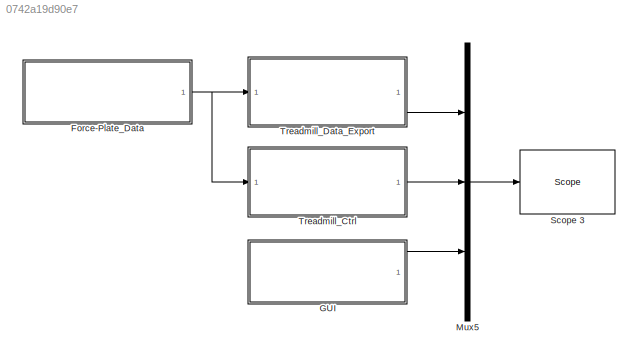
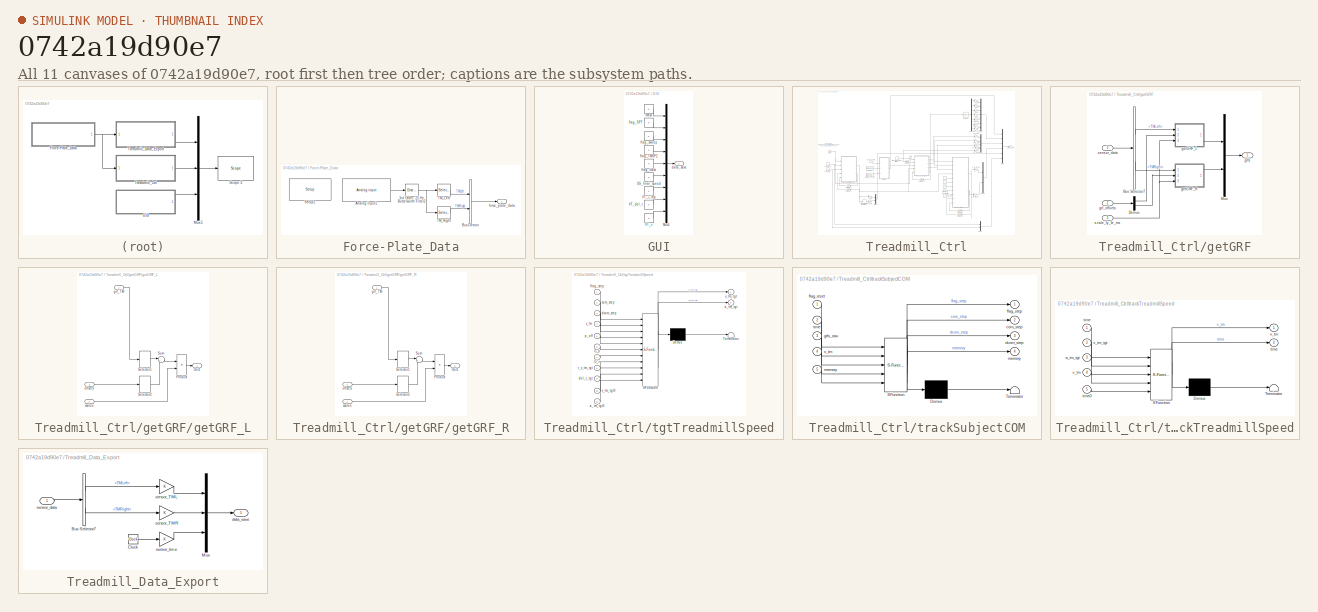
[diagram: thumbnail index - all 11 canvases of the model, root first then tree order]
MODEL slx_0742a19d90e7
KIND model
CONFIG AbsTol = auto
CONFIG EnableMultiTasking = on
CONFIG FixedStep = 0.001
CONFIG MaxStep = auto
CONFIG MinStep = auto
CONFIG RelTol = 1e-3
CONFIG SampleTimeConstraint = Unconstrained
CONFIG Solver = FixedStepDiscrete
CONFIG SolverName = FixedStepDiscrete
CONFIG StartTime = 0.0
CONFIG StopTime = inf
BLOCK [SubSystem] Force-Plate_Data
  Ports = [0, 1]
  RequestExecContextInheritance = off
  Variant = off
BLOCK [DiscreteFilter] Force-Plate_Data/3rd Order, 25 Hz Butterworth Filter2
  Denominator = [1	-2.68615739654814	2.41965511096647	-0.730165345305723]
  InputPortMap = u0
  Numerator = [0.000416546139075769	0.00124963841722731	0.00124963841722731	0.000416546139075769]
  Ports = [1, 1]
BLOCK [Reference] Force-Plate_Data/Analog input1  REF=speedgoatlib_IO106/Analog input
  Ports = [0, 1]
  SourceBlock = speedgoatlib_IO106/Analog input
  SourceProductName = Simulink Real-Time: Speedgoat I/O Driver Library
  SourceType = ad_IO106
BLOCK [BusCreator] Force-Plate_Data/Bus Creator
  DisplayOption = bar
  InheritFromInputs = on
  Inputs = 2
  Ports = [2, 1]
BLOCK [Reference] Force-Plate_Data/Setup2  REF=speedgoatlib_IO106/Setup
  Ports = []
  SourceBlock = speedgoatlib_IO106/Setup
  SourceProductName = Simulink Real-Time: Speedgoat I/O Driver Library
  SourceType = setup_IO106
BLOCK [Selector] Force-Plate_Data/TM_Left
  IndexOptions = Index vector (dialog)
  Indices = 1:6
  InputPortWidth = 12
  OutputSizes = 1
  Ports = [1, 1]
BLOCK [Selector] Force-Plate_Data/TM_Right
  IndexOptions = Index vector (dialog)
  Indices = 7:12
  InputPortWidth = 12
  OutputSizes = 1
  Ports = [1, 1]
BLOCK [Outport] Force-Plate_Data/force_plate_data
  IconDisplay = Port number
BLOCK [SubSystem] GUI
  Ports = [0, 1]
  RequestExecContextInheritance = off
  Variant = off
BLOCK [Mux] GUI/Mux1
  DisplayOption = bar
  Inputs = 9
  Ports = [9, 1]
BLOCK [Constant] GUI/SS_final_speed
  Value = 0
BLOCK [Constant] GUI/VT_del_t
  Value = 0
BLOCK [Constant] GUI/VT_i_lap
  Value = 0
BLOCK [Constant] GUI/VT_v
  Value = 0
BLOCK [Outport] GUI/data_save
  IconDisplay = Port number
BLOCK [Constant] GUI/flag_SPT
  Value = 0
BLOCK [Constant] GUI/flag_TMSP2
  Value = 0
BLOCK [Constant] GUI/flag_sweep
  Value = 0
BLOCK [Constant] GUI/flag_track
  Value = 0
BLOCK [Constant] GUI/mass
  Value = 0
BLOCK [Mux] Mux5
  DisplayOption = bar
  Inputs = 3
  Ports = [3, 1]
BLOCK [Reference] Scope 3  REF=slrtlib/Displays and
Logging/Scope 
  Ports = [1]
  SourceBlock = slrtlib/Displays and\nLogging/Scope
  SourceProductBaseCode = XP
  SourceProductName = Simulink Real-Time
  SourceType = xpcscopeblock
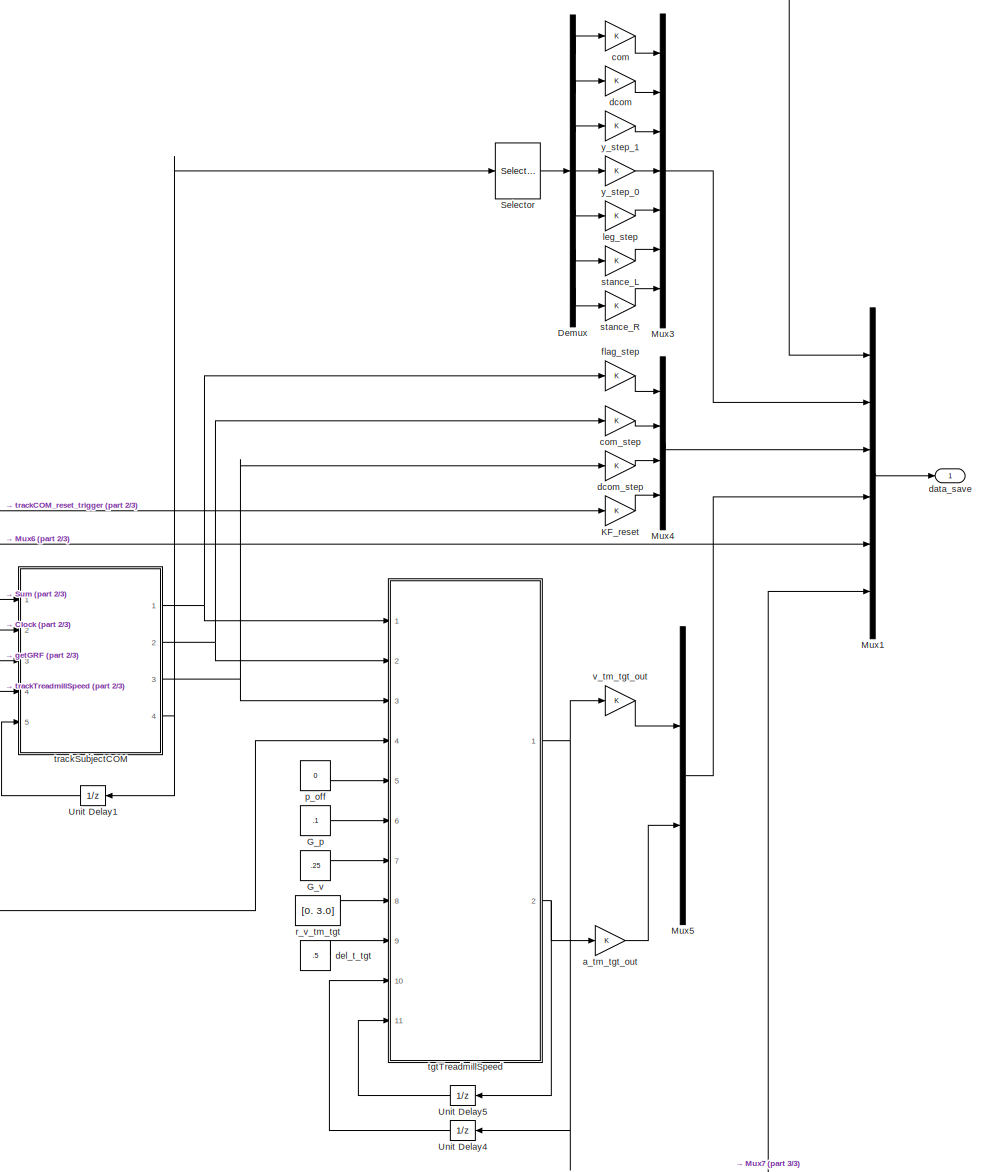
[diagram: Treadmill_Ctrl - part 1/3, right side, full height]
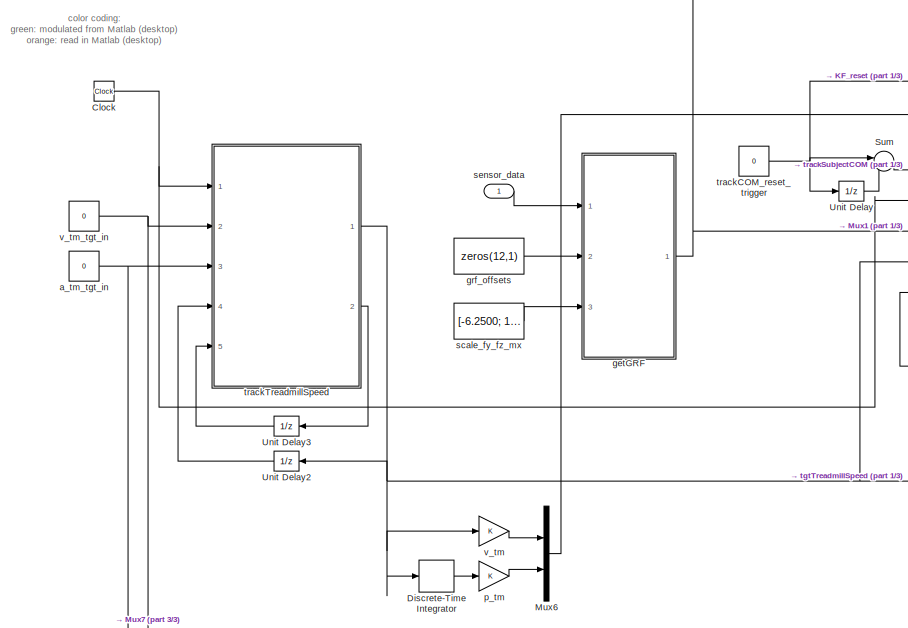
[diagram: Treadmill_Ctrl - part 2/3, middle left region]
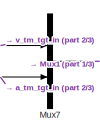
[diagram: Treadmill_Ctrl - part 3/3, bottom right region]
BLOCK [SubSystem] Treadmill_Ctrl
  Ports = [1, 1]
  RequestExecContextInheritance = off
  Variant = off
BLOCK [Clock] Treadmill_Ctrl/Clock
BLOCK [Demux] Treadmill_Ctrl/Demux
  DisplayOption = bar
  Outputs = 7
  Ports = [1, 7]
BLOCK [DiscreteIntegrator] Treadmill_Ctrl/Discrete-Time Integrator
  ICPrevOutput = DiscIntNeverNeededParam
  ICPrevScaledInput = DiscIntNeverNeededParam
  InitialConditionSetting = State (most efficient)
  Ports = [1, 1]
  SampleTime = -1
BLOCK [Constant] Treadmill_Ctrl/G_p
  Value = .1
BLOCK [Constant] Treadmill_Ctrl/G_v
  Value = .25
BLOCK [Gain] Treadmill_Ctrl/KF_reset
  OutDataTypeStr = Inherit: Inherit via internal rule
  ParamDataTypeStr = Inherit: Inherit via internal rule
  SaturateOnIntegerOverflow = off
BLOCK [Mux] Treadmill_Ctrl/Mux1
  DisplayOption = bar
  Inputs = 6
  Ports = [6, 1]
BLOCK [Mux] Treadmill_Ctrl/Mux3
  DisplayOption = bar
  Inputs = 7
  Ports = [7, 1]
BLOCK [Mux] Treadmill_Ctrl/Mux4
  DisplayOption = bar
  Ports = [4, 1]
BLOCK [Mux] Treadmill_Ctrl/Mux5
  DisplayOption = bar
  Inputs = 2
  Ports = [2, 1]
BLOCK [Mux] Treadmill_Ctrl/Mux6
  DisplayOption = bar
  Inputs = 2
  Ports = [2, 1]
BLOCK [Mux] Treadmill_Ctrl/Mux7
  DisplayOption = bar
  Inputs = 2
  Ports = [2, 1]
BLOCK [Selector] Treadmill_Ctrl/Selector
  IndexOptions = Index vector (dialog)
  Indices = [2 3 13 14 11 8 9]
  InputPortWidth = 82
  OutputSizes = 1
  Ports = [1, 1]
BLOCK [Sum] Treadmill_Ctrl/Sum
  IconShape = round
  InputSameDT = off
  Inputs = |+-
  OutDataTypeStr = Inherit: Inherit via internal rule
  Ports = [2, 1]
  SaturateOnIntegerOverflow = off
BLOCK [UnitDelay] Treadmill_Ctrl/Unit Delay
  InputProcessing = Elements as channels (sample based)
  SampleTime = -1
BLOCK [UnitDelay] Treadmill_Ctrl/Unit Delay1
  InitialCondition = [0 0 0 .00383 .00162 .00162 .00166 0 0 .7 0 1 .35 -.35 0 -.5 0 0 0 0 0 0 zeros(1,60)]
  InputProcessing = Elements as channels (sample based)
  SampleTime = -1
BLOCK [UnitDelay] Treadmill_Ctrl/Unit Delay2
  InputProcessing = Elements as channels (sample based)
  SampleTime = -1
BLOCK [UnitDelay] Treadmill_Ctrl/Unit Delay3
  InputProcessing = Elements as channels (sample based)
  SampleTime = -1
BLOCK [UnitDelay] Treadmill_Ctrl/Unit Delay4
  InputProcessing = Elements as channels (sample based)
  SampleTime = -1
BLOCK [UnitDelay] Treadmill_Ctrl/Unit Delay5
  InputProcessing = Elements as channels (sample based)
  SampleTime = -1
BLOCK [Constant] Treadmill_Ctrl/a_tm_tgt_in
  Value = 0
BLOCK [Gain] Treadmill_Ctrl/a_tm_tgt_out
  OutDataTypeStr = Inherit: Inherit via internal rule
  ParamDataTypeStr = Inherit: Inherit via internal rule
  SaturateOnIntegerOverflow = off
BLOCK [Gain] Treadmill_Ctrl/com
  OutDataTypeStr = Inherit: Inherit via internal rule
  ParamDataTypeStr = Inherit: Inherit via internal rule
  SaturateOnIntegerOverflow = off
BLOCK [Gain] Treadmill_Ctrl/com_step
  OutDataTypeStr = Inherit: Inherit via internal rule
  ParamDataTypeStr = Inherit: Inherit via internal rule
  SaturateOnIntegerOverflow = off
BLOCK [Outport] Treadmill_Ctrl/data_save
  IconDisplay = Port number
BLOCK [Gain] Treadmill_Ctrl/dcom
  OutDataTypeStr = Inherit: Inherit via internal rule
  ParamDataTypeStr = Inherit: Inherit via internal rule
  SaturateOnIntegerOverflow = off
BLOCK [Gain] Treadmill_Ctrl/dcom_step
  OutDataTypeStr = Inherit: Inherit via internal rule
  ParamDataTypeStr = Inherit: Inherit via internal rule
  SaturateOnIntegerOverflow = off
BLOCK [Constant] Treadmill_Ctrl/del_t_tgt
  Value = .5
BLOCK [Gain] Treadmill_Ctrl/flag_step
  OutDataTypeStr = Inherit: Inherit via internal rule
  ParamDataTypeStr = Inherit: Inherit via internal rule
  SaturateOnIntegerOverflow = off
BLOCK [SubSystem] Treadmill_Ctrl/getGRF
  Ports = [3, 1]
  RequestExecContextInheritance = off
  Variant = off
BLOCK [BusSelector] Treadmill_Ctrl/getGRF/Bus Selector7
  OutputAsBus = off
  OutputSignals = TMLeft,TMRight
  Ports = [1, 2]
BLOCK [Demux] Treadmill_Ctrl/getGRF/Demux
  DisplayOption = bar
  Outputs = 2
  Ports = [1, 2]
BLOCK [Mux] Treadmill_Ctrl/getGRF/Mux
  DisplayOption = bar
  Inputs = 2
  Ports = [2, 1]
BLOCK [SubSystem] Treadmill_Ctrl/getGRF/getGRF_L
  Ports = [3, 1]
  RequestExecContextInheritance = off
  Variant = off
BLOCK [Outport] Treadmill_Ctrl/getGRF/getGRF_L/Out1
  IconDisplay = Port number
BLOCK [Product] Treadmill_Ctrl/getGRF/getGRF_L/Product
  InputSameDT = off
  OutDataTypeStr = Inherit: Inherit via internal rule
  Ports = [2, 1]
  RndMeth = Floor
  SaturateOnIntegerOverflow = off
BLOCK [Selector] Treadmill_Ctrl/getGRF/getGRF_L/Selector1
  IndexOptions = Index vector (dialog)
  Indices = [2 3 4]
  InputPortWidth = 6
  OutputSizes = 1
  Ports = [1, 1]
BLOCK [Selector] Treadmill_Ctrl/getGRF/getGRF_L/Selector2
  IndexOptions = Index vector (dialog)
  Indices = [2 3 4]
  InputPortWidth = 6
  OutputSizes = 1
  Ports = [1, 1]
BLOCK [Sum] Treadmill_Ctrl/getGRF/getGRF_L/Sum
  IconShape = round
  InputSameDT = off
  Inputs = |+-
  OutDataTypeStr = Inherit: Inherit via internal rule
  Ports = [2, 1]
  SaturateOnIntegerOverflow = off
BLOCK [Inport] Treadmill_Ctrl/getGRF/getGRF_L/grf_TM
  IconDisplay = Port number
BLOCK [Inport] Treadmill_Ctrl/getGRF/getGRF_L/offsets
  IconDisplay = Port number
  Port = 2
BLOCK [Inport] Treadmill_Ctrl/getGRF/getGRF_L/scales
  IconDisplay = Port number
  Port = 3
BLOCK [SubSystem] Treadmill_Ctrl/getGRF/getGRF_R
  Ports = [3, 1]
  RequestExecContextInheritance = off
  Variant = off
BLOCK [Outport] Treadmill_Ctrl/getGRF/getGRF_R/Out1
  IconDisplay = Port number
BLOCK [Product] Treadmill_Ctrl/getGRF/getGRF_R/Product
  InputSameDT = off
  OutDataTypeStr = Inherit: Inherit via internal rule
  Ports = [2, 1]
  RndMeth = Floor
  SaturateOnIntegerOverflow = off
BLOCK [Selector] Treadmill_Ctrl/getGRF/getGRF_R/Selector1
  IndexOptions = Index vector (dialog)
  Indices = [2 3 4]
  InputPortWidth = 6
  OutputSizes = 1
  Ports = [1, 1]
BLOCK [Selector] Treadmill_Ctrl/getGRF/getGRF_R/Selector2
  IndexOptions = Index vector (dialog)
  Indices = [2 3 4]
  InputPortWidth = 6
  OutputSizes = 1
  Ports = [1, 1]
BLOCK [Sum] Treadmill_Ctrl/getGRF/getGRF_R/Sum
  IconShape = round
  InputSameDT = off
  Inputs = |+-
  OutDataTypeStr = Inherit: Inherit via internal rule
  Ports = [2, 1]
  SaturateOnIntegerOverflow = off
BLOCK [Inport] Treadmill_Ctrl/getGRF/getGRF_R/grf_TM
  IconDisplay = Port number
BLOCK [Inport] Treadmill_Ctrl/getGRF/getGRF_R/offsets
  IconDisplay = Port number
  Port = 2
BLOCK [Inport] Treadmill_Ctrl/getGRF/getGRF_R/scales
  IconDisplay = Port number
  Port = 3
BLOCK [Inport] Treadmill_Ctrl/getGRF/grf_offsets
  IconDisplay = Port number
  Port = 2
BLOCK [Outport] Treadmill_Ctrl/getGRF/grfs
  IconDisplay = Port number
BLOCK [Inport] Treadmill_Ctrl/getGRF/scale_fy_fz_mx
  IconDisplay = Port number
  Port = 3
BLOCK [Inport] Treadmill_Ctrl/getGRF/sensor_data
  IconDisplay = Port number
BLOCK [Constant] Treadmill_Ctrl/grf_offsets
  Value = zeros(12,1)
BLOCK [Gain] Treadmill_Ctrl/leg_step
  OutDataTypeStr = Inherit: Inherit via internal rule
  ParamDataTypeStr = Inherit: Inherit via internal rule
  SaturateOnIntegerOverflow = off
BLOCK [Constant] Treadmill_Ctrl/p_off
  Value = 0
BLOCK [Gain] Treadmill_Ctrl/p_tm
  OutDataTypeStr = Inherit: Inherit via internal rule
  ParamDataTypeStr = Inherit: Inherit via internal rule
  SaturateOnIntegerOverflow = off
BLOCK [Constant] Treadmill_Ctrl/r_v_tm_tgt
  Value = [0. 3.0]
BLOCK [Constant] Treadmill_Ctrl/scale_fy_fz_mx
  Value = [-6.2500; 12.5000; -10.0000]
BLOCK [Inport] Treadmill_Ctrl/sensor_data
  IconDisplay = Port number
BLOCK [Gain] Treadmill_Ctrl/stance_L
  OutDataTypeStr = Inherit: Inherit via internal rule
  ParamDataTypeStr = Inherit: Inherit via internal rule
  SaturateOnIntegerOverflow = off
BLOCK [Gain] Treadmill_Ctrl/stance_R
  OutDataTypeStr = Inherit: Inherit via internal rule
  ParamDataTypeStr = Inherit: Inherit via internal rule
  SaturateOnIntegerOverflow = off
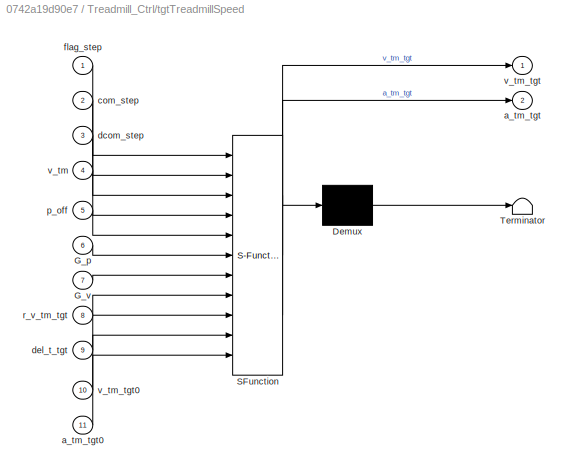
BLOCK [SubSystem] Treadmill_Ctrl/tgtTreadmillSpeed
  ErrorFcn = Stateflow.Translate.translate
  PermitHierarchicalResolution = ExplicitOnly
  Ports = [11, 2]
  RequestExecContextInheritance = off
  SFBlockType = MATLAB Function
  TreatAsAtomicUnit = on
  Variant = off
BLOCK [Demux] Treadmill_Ctrl/tgtTreadmillSpeed/ Demux 
  Outputs = 1
  Ports = [1, 1]
BLOCK [S-Function] Treadmill_Ctrl/tgtTreadmillSpeed/ SFunction 
  EnableBusSupport = on
  FunctionName = sf_sfun
  PortCounts = [11 3]
  Ports = [11, 3]
  SFcnIsStateOwnerBlock = off
  SFunctionDeploymentMode = off
  Tag = Stateflow S-Function Treadmill_SPT 8
BLOCK [Terminator] Treadmill_Ctrl/tgtTreadmillSpeed/ Terminator 
BLOCK [Inport] Treadmill_Ctrl/tgtTreadmillSpeed/G_p
  IconDisplay = Port number
  Port = 6
BLOCK [Inport] Treadmill_Ctrl/tgtTreadmillSpeed/G_v
  IconDisplay = Port number
  Port = 7
BLOCK [Outport] Treadmill_Ctrl/tgtTreadmillSpeed/a_tm_tgt
  IconDisplay = Port number
  Port = 2
BLOCK [Inport] Treadmill_Ctrl/tgtTreadmillSpeed/a_tm_tgt0
  IconDisplay = Port number
  Port = 11
BLOCK [Inport] Treadmill_Ctrl/tgtTreadmillSpeed/com_step
  IconDisplay = Port number
  Port = 2
BLOCK [Inport] Treadmill_Ctrl/tgtTreadmillSpeed/dcom_step
  IconDisplay = Port number
  Port = 3
BLOCK [Inport] Treadmill_Ctrl/tgtTreadmillSpeed/del_t_tgt
  IconDisplay = Port number
  Port = 9
BLOCK [Inport] Treadmill_Ctrl/tgtTreadmillSpeed/flag_step
  IconDisplay = Port number
BLOCK [Inport] Treadmill_Ctrl/tgtTreadmillSpeed/p_off
  IconDisplay = Port number
  Port = 5
BLOCK [Inport] Treadmill_Ctrl/tgtTreadmillSpeed/r_v_tm_tgt
  IconDisplay = Port number
  Port = 8
BLOCK [Inport] Treadmill_Ctrl/tgtTreadmillSpeed/v_tm
  IconDisplay = Port number
  Port = 4
BLOCK [Outport] Treadmill_Ctrl/tgtTreadmillSpeed/v_tm_tgt
  IconDisplay = Port number
BLOCK [Inport] Treadmill_Ctrl/tgtTreadmillSpeed/v_tm_tgt0
  IconDisplay = Port number
  Port = 10
BLOCK [Constant] Treadmill_Ctrl/trackCOM_reset_trigger
  Value = 0
BLOCK [SubSystem] Treadmill_Ctrl/trackSubjectCOM
  ErrorFcn = Stateflow.Translate.translate
  PermitHierarchicalResolution = ExplicitOnly
  Ports = [5, 4]
  RequestExecContextInheritance = off
  SFBlockType = MATLAB Function
  TreatAsAtomicUnit = on
  Variant = off
BLOCK [Demux] Treadmill_Ctrl/trackSubjectCOM/ Demux 
  Outputs = 1
  Ports = [1, 1]
BLOCK [S-Function] Treadmill_Ctrl/trackSubjectCOM/ SFunction 
  EnableBusSupport = on
  FunctionName = sf_sfun
  PortCounts = [5 5]
  Ports = [5, 5]
  SFcnIsStateOwnerBlock = off
  SFunctionDeploymentMode = off
  Tag = Stateflow S-Function Treadmill_SPT 13
BLOCK [Terminator] Treadmill_Ctrl/trackSubjectCOM/ Terminator 
BLOCK [Outport] Treadmill_Ctrl/trackSubjectCOM/com_step
  IconDisplay = Port number
  Port = 2
BLOCK [Outport] Treadmill_Ctrl/trackSubjectCOM/dcom_step
  IconDisplay = Port number
  Port = 3
BLOCK [Inport] Treadmill_Ctrl/trackSubjectCOM/flag_reset
  IconDisplay = Port number
BLOCK [Outport] Treadmill_Ctrl/trackSubjectCOM/flag_step
  IconDisplay = Port number
BLOCK [Inport] Treadmill_Ctrl/trackSubjectCOM/grfs_raw
  IconDisplay = Port number
  Port = 3
BLOCK [Outport] Treadmill_Ctrl/trackSubjectCOM/memory
  IconDisplay = Port number
  Port = 4
BLOCK [Inport] Treadmill_Ctrl/trackSubjectCOM/memory 
  IconDisplay = Port number
  Port = 5
BLOCK [Inport] Treadmill_Ctrl/trackSubjectCOM/time
  IconDisplay = Port number
  Port = 2
BLOCK [Inport] Treadmill_Ctrl/trackSubjectCOM/v_tm
  IconDisplay = Port number
  Port = 4
BLOCK [SubSystem] Treadmill_Ctrl/trackTreadmillSpeed
  ErrorFcn = Stateflow.Translate.translate
  PermitHierarchicalResolution = ExplicitOnly
  Ports = [5, 2]
  RequestExecContextInheritance = off
  SFBlockType = MATLAB Function
  TreatAsAtomicUnit = on
  Variant = off
BLOCK [Demux] Treadmill_Ctrl/trackTreadmillSpeed/ Demux 
  Outputs = 1
  Ports = [1, 1]
BLOCK [S-Function] Treadmill_Ctrl/trackTreadmillSpeed/ SFunction 
  EnableBusSupport = on
  FunctionName = sf_sfun
  PortCounts = [5 3]
  Ports = [5, 3]
  SFcnIsStateOwnerBlock = off
  SFunctionDeploymentMode = off
  Tag = Stateflow S-Function Treadmill_SPT 2
BLOCK [Terminator] Treadmill_Ctrl/trackTreadmillSpeed/ Terminator 
BLOCK [Inport] Treadmill_Ctrl/trackTreadmillSpeed/a_tm_tgt
  IconDisplay = Port number
  Port = 3
BLOCK [Outport] Treadmill_Ctrl/trackTreadmillSpeed/time
  IconDisplay = Port number
  Port = 2
BLOCK [Inport] Treadmill_Ctrl/trackTreadmillSpeed/time 
  IconDisplay = Port number
BLOCK [Inport] Treadmill_Ctrl/trackTreadmillSpeed/time0
  IconDisplay = Port number
  Port = 5
BLOCK [Outport] Treadmill_Ctrl/trackTreadmillSpeed/v_tm
  IconDisplay = Port number
BLOCK [Inport] Treadmill_Ctrl/trackTreadmillSpeed/v_tm 
  IconDisplay = Port number
  Port = 4
BLOCK [Inport] Treadmill_Ctrl/trackTreadmillSpeed/v_tm_tgt
  IconDisplay = Port number
  Port = 2
BLOCK [Gain] Treadmill_Ctrl/v_tm
  OutDataTypeStr = Inherit: Inherit via internal rule
  ParamDataTypeStr = Inherit: Inherit via internal rule
  SaturateOnIntegerOverflow = off
BLOCK [Constant] Treadmill_Ctrl/v_tm_tgt_in
  Value = 0
BLOCK [Gain] Treadmill_Ctrl/v_tm_tgt_out
  OutDataTypeStr = Inherit: Inherit via internal rule
  ParamDataTypeStr = Inherit: Inherit via internal rule
  SaturateOnIntegerOverflow = off
BLOCK [Gain] Treadmill_Ctrl/y_step_0
  OutDataTypeStr = Inherit: Inherit via internal rule
  ParamDataTypeStr = Inherit: Inherit via internal rule
  SaturateOnIntegerOverflow = off
BLOCK [Gain] Treadmill_Ctrl/y_step_1
  OutDataTypeStr = Inherit: Inherit via internal rule
  ParamDataTypeStr = Inherit: Inherit via internal rule
  SaturateOnIntegerOverflow = off
BLOCK [SubSystem] Treadmill_Data_Export
  Ports = [1, 1]
  RequestExecContextInheritance = off
  Variant = off
BLOCK [BusSelector] Treadmill_Data_Export/Bus Selector7
  OutputAsBus = off
  OutputSignals = TMLeft,TMRight
  Ports = [1, 2]
BLOCK [Clock] Treadmill_Data_Export/Clock
BLOCK [Mux] Treadmill_Data_Export/Mux
  DisplayOption = bar
  Inputs = 3
  Ports = [3, 1]
BLOCK [Outport] Treadmill_Data_Export/data_save
  IconDisplay = Port number
BLOCK [Gain] Treadmill_Data_Export/sensor_TML
  OutDataTypeStr = Inherit: Inherit via internal rule
  ParamDataTypeStr = Inherit: Inherit via internal rule
  SaturateOnIntegerOverflow = off
BLOCK [Gain] Treadmill_Data_Export/sensor_TMR
  OutDataTypeStr = Inherit: Inherit via internal rule
  ParamDataTypeStr = Inherit: Inherit via internal rule
  SaturateOnIntegerOverflow = off
BLOCK [Inport] Treadmill_Data_Export/sensor_data
  IconDisplay = Port number
BLOCK [Gain] Treadmill_Data_Export/sensor_time
  OutDataTypeStr = Inherit: Inherit via internal rule
  ParamDataTypeStr = Inherit: Inherit via internal rule
  SaturateOnIntegerOverflow = off
ANNOTATION Treadmill_Ctrl: color coding: green: modulated from Matlab (desktop) orange: read in Matlab (desktop)
NET Force-Plate_Data/3rd Order, 25 Hz Butterworth Filter2:1 -> Force-Plate_Data/TM_Left:1, Force-Plate_Data/TM_Right:1
LINE Force-Plate_Data/Analog input1:1 -> Force-Plate_Data/3rd Order, 25 Hz Butterworth Filter2:1
LINE Force-Plate_Data/Bus Creator:1 -> Force-Plate_Data/force_plate_data:1
LINE Force-Plate_Data/TM_Left:1 -> Force-Plate_Data/Bus Creator:1
LINE Force-Plate_Data/TM_Right:1 -> Force-Plate_Data/Bus Creator:2
NET Force-Plate_Data:1 -> Treadmill_Ctrl:1, Treadmill_Data_Export:1
LINE GUI/Mux1:1 -> GUI/data_save:1
LINE GUI/SS_final_speed:1 -> GUI/Mux1:6
LINE GUI/VT_del_t:1 -> GUI/Mux1:8
LINE GUI/VT_i_lap:1 -> GUI/Mux1:7
LINE GUI/VT_v:1 -> GUI/Mux1:9
LINE GUI/flag_SPT:1 -> GUI/Mux1:2
LINE GUI/flag_TMSP2:1 -> GUI/Mux1:4
LINE GUI/flag_sweep:1 -> GUI/Mux1:3
LINE GUI/flag_track:1 -> GUI/Mux1:5
LINE GUI/mass:1 -> GUI/Mux1:1
LINE GUI:1 -> Mux5:3
LINE Mux5:1 -> Scope 3:1
NET Treadmill_Ctrl/Clock:1 -> Treadmill_Ctrl/trackSubjectCOM:2, Treadmill_Ctrl/trackTreadmillSpeed:1
LINE Treadmill_Ctrl/Demux:1 -> Treadmill_Ctrl/com:1
LINE Treadmill_Ctrl/Demux:2 -> Treadmill_Ctrl/dcom:1
LINE Treadmill_Ctrl/Demux:3 -> Treadmill_Ctrl/y_step_1:1
LINE Treadmill_Ctrl/Demux:4 -> Treadmill_Ctrl/y_step_0:1
LINE Treadmill_Ctrl/Demux:5 -> Treadmill_Ctrl/leg_step:1
LINE Treadmill_Ctrl/Demux:6 -> Treadmill_Ctrl/stance_L:1
LINE Treadmill_Ctrl/Demux:7 -> Treadmill_Ctrl/stance_R:1
LINE Treadmill_Ctrl/Discrete-Time Integrator:1 -> Treadmill_Ctrl/p_tm:1
LINE Treadmill_Ctrl/G_p:1 -> Treadmill_Ctrl/tgtTreadmillSpeed:6
LINE Treadmill_Ctrl/G_v:1 -> Treadmill_Ctrl/tgtTreadmillSpeed:7
LINE Treadmill_Ctrl/KF_reset:1 -> Treadmill_Ctrl/Mux4:4
LINE Treadmill_Ctrl/Mux1:1 -> Treadmill_Ctrl/data_save:1
LINE Treadmill_Ctrl/Mux3:1 -> Treadmill_Ctrl/Mux1:2
LINE Treadmill_Ctrl/Mux4:1 -> Treadmill_Ctrl/Mux1:3
LINE Treadmill_Ctrl/Mux5:1 -> Treadmill_Ctrl/Mux1:4
LINE Treadmill_Ctrl/Mux6:1 -> Treadmill_Ctrl/Mux1:5
LINE Treadmill_Ctrl/Mux7:1 -> Treadmill_Ctrl/Mux1:6
LINE Treadmill_Ctrl/Selector:1 -> Treadmill_Ctrl/Demux:1
LINE Treadmill_Ctrl/Sum:1 -> Treadmill_Ctrl/trackSubjectCOM:1
LINE Treadmill_Ctrl/Unit Delay1:1 -> Treadmill_Ctrl/trackSubjectCOM:5
LINE Treadmill_Ctrl/Unit Delay2:1 -> Treadmill_Ctrl/trackTreadmillSpeed:4
LINE Treadmill_Ctrl/Unit Delay3:1 -> Treadmill_Ctrl/trackTreadmillSpeed:5
LINE Treadmill_Ctrl/Unit Delay4:1 -> Treadmill_Ctrl/tgtTreadmillSpeed:10
LINE Treadmill_Ctrl/Unit Delay5:1 -> Treadmill_Ctrl/tgtTreadmillSpeed:11
LINE Treadmill_Ctrl/Unit Delay:1 -> Treadmill_Ctrl/Sum:2
NET Treadmill_Ctrl/a_tm_tgt_in:1 -> Treadmill_Ctrl/Mux7:2, Treadmill_Ctrl/trackTreadmillSpeed:3
LINE Treadmill_Ctrl/a_tm_tgt_out:1 -> Treadmill_Ctrl/Mux5:2
LINE Treadmill_Ctrl/com:1 -> Treadmill_Ctrl/Mux3:1
LINE Treadmill_Ctrl/com_step:1 -> Treadmill_Ctrl/Mux4:2
LINE Treadmill_Ctrl/dcom:1 -> Treadmill_Ctrl/Mux3:2
LINE Treadmill_Ctrl/dcom_step:1 -> Treadmill_Ctrl/Mux4:3
LINE Treadmill_Ctrl/del_t_tgt:1 -> Treadmill_Ctrl/tgtTreadmillSpeed:9
LINE Treadmill_Ctrl/flag_step:1 -> Treadmill_Ctrl/Mux4:1
LINE Treadmill_Ctrl/getGRF/Bus Selector7:1 -> Treadmill_Ctrl/getGRF/getGRF_L:1
LINE Treadmill_Ctrl/getGRF/Bus Selector7:2 -> Treadmill_Ctrl/getGRF/getGRF_R:1
LINE Treadmill_Ctrl/getGRF/Demux:1 -> Treadmill_Ctrl/getGRF/getGRF_L:2
LINE Treadmill_Ctrl/getGRF/Demux:2 -> Treadmill_Ctrl/getGRF/getGRF_R:2
LINE Treadmill_Ctrl/getGRF/Mux:1 -> Treadmill_Ctrl/getGRF/grfs:1
LINE Treadmill_Ctrl/getGRF/getGRF_L/Product:1 -> Treadmill_Ctrl/getGRF/getGRF_L/Out1:1
LINE Treadmill_Ctrl/getGRF/getGRF_L/Selector1:1 -> Treadmill_Ctrl/getGRF/getGRF_L/Sum:1
LINE Treadmill_Ctrl/getGRF/getGRF_L/Selector2:1 -> Treadmill_Ctrl/getGRF/getGRF_L/Sum:2
LINE Treadmill_Ctrl/getGRF/getGRF_L/Sum:1 -> Treadmill_Ctrl/getGRF/getGRF_L/Product:1
LINE Treadmill_Ctrl/getGRF/getGRF_L/grf_TM:1 -> Treadmill_Ctrl/getGRF/getGRF_L/Selector1:1
LINE Treadmill_Ctrl/getGRF/getGRF_L/offsets:1 -> Treadmill_Ctrl/getGRF/getGRF_L/Selector2:1
LINE Treadmill_Ctrl/getGRF/getGRF_L/scales:1 -> Treadmill_Ctrl/getGRF/getGRF_L/Product:2
LINE Treadmill_Ctrl/getGRF/getGRF_L:1 -> Treadmill_Ctrl/getGRF/Mux:1
LINE Treadmill_Ctrl/getGRF/getGRF_R/Product:1 -> Treadmill_Ctrl/getGRF/getGRF_R/Out1:1
LINE Treadmill_Ctrl/getGRF/getGRF_R/Selector1:1 -> Treadmill_Ctrl/getGRF/getGRF_R/Sum:1
LINE Treadmill_Ctrl/getGRF/getGRF_R/Selector2:1 -> Treadmill_Ctrl/getGRF/getGRF_R/Sum:2
LINE Treadmill_Ctrl/getGRF/getGRF_R/Sum:1 -> Treadmill_Ctrl/getGRF/getGRF_R/Product:1
LINE Treadmill_Ctrl/getGRF/getGRF_R/grf_TM:1 -> Treadmill_Ctrl/getGRF/getGRF_R/Selector1:1
LINE Treadmill_Ctrl/getGRF/getGRF_R/offsets:1 -> Treadmill_Ctrl/getGRF/getGRF_R/Selector2:1
LINE Treadmill_Ctrl/getGRF/getGRF_R/scales:1 -> Treadmill_Ctrl/getGRF/getGRF_R/Product:2
LINE Treadmill_Ctrl/getGRF/getGRF_R:1 -> Treadmill_Ctrl/getGRF/Mux:2
LINE Treadmill_Ctrl/getGRF/grf_offsets:1 -> Treadmill_Ctrl/getGRF/Demux:1
NET Treadmill_Ctrl/getGRF/scale_fy_fz_mx:1 -> Treadmill_Ctrl/getGRF/getGRF_L:3, Treadmill_Ctrl/getGRF/getGRF_R:3
LINE Treadmill_Ctrl/getGRF/sensor_data:1 -> Treadmill_Ctrl/getGRF/Bus Selector7:1
NET Treadmill_Ctrl/getGRF:1 -> Treadmill_Ctrl/Mux1:1, Treadmill_Ctrl/trackSubjectCOM:3
LINE Treadmill_Ctrl/grf_offsets:1 -> Treadmill_Ctrl/getGRF:2
LINE Treadmill_Ctrl/leg_step:1 -> Treadmill_Ctrl/Mux3:5
LINE Treadmill_Ctrl/p_off:1 -> Treadmill_Ctrl/tgtTreadmillSpeed:5
LINE Treadmill_Ctrl/p_tm:1 -> Treadmill_Ctrl/Mux6:2
LINE Treadmill_Ctrl/r_v_tm_tgt:1 -> Treadmill_Ctrl/tgtTreadmillSpeed:8
LINE Treadmill_Ctrl/scale_fy_fz_mx:1 -> Treadmill_Ctrl/getGRF:3
LINE Treadmill_Ctrl/sensor_data:1 -> Treadmill_Ctrl/getGRF:1
LINE Treadmill_Ctrl/stance_L:1 -> Treadmill_Ctrl/Mux3:6
LINE Treadmill_Ctrl/stance_R:1 -> Treadmill_Ctrl/Mux3:7
NET Treadmill_Ctrl/tgtTreadmillSpeed:1 -> Treadmill_Ctrl/Unit Delay4:1, Treadmill_Ctrl/v_tm_tgt_out:1
NET Treadmill_Ctrl/tgtTreadmillSpeed:2 -> Treadmill_Ctrl/Unit Delay5:1, Treadmill_Ctrl/a_tm_tgt_out:1
NET Treadmill_Ctrl/trackCOM_reset_trigger:1 -> Treadmill_Ctrl/KF_reset:1, Treadmill_Ctrl/Sum:1, Treadmill_Ctrl/Unit Delay:1
NET Treadmill_Ctrl/trackSubjectCOM:1 -> Treadmill_Ctrl/flag_step:1, Treadmill_Ctrl/tgtTreadmillSpeed:1
NET Treadmill_Ctrl/trackSubjectCOM:2 -> Treadmill_Ctrl/com_step:1, Treadmill_Ctrl/tgtTreadmillSpeed:2
NET Treadmill_Ctrl/trackSubjectCOM:3 -> Treadmill_Ctrl/dcom_step:1, Treadmill_Ctrl/tgtTreadmillSpeed:3
NET Treadmill_Ctrl/trackSubjectCOM:4 -> Treadmill_Ctrl/Selector:1, Treadmill_Ctrl/Unit Delay1:1
NET Treadmill_Ctrl/trackTreadmillSpeed:1 -> Treadmill_Ctrl/Discrete-Time Integrator:1, Treadmill_Ctrl/Unit Delay2:1, Treadmill_Ctrl/tgtTreadmillSpeed:4, Treadmill_Ctrl/trackSubjectCOM:4, Treadmill_Ctrl/v_tm:1
LINE Treadmill_Ctrl/trackTreadmillSpeed:2 -> Treadmill_Ctrl/Unit Delay3:1
LINE Treadmill_Ctrl/v_tm:1 -> Treadmill_Ctrl/Mux6:1
NET Treadmill_Ctrl/v_tm_tgt_in:1 -> Treadmill_Ctrl/Mux7:1, Treadmill_Ctrl/trackTreadmillSpeed:2
LINE Treadmill_Ctrl/v_tm_tgt_out:1 -> Treadmill_Ctrl/Mux5:1
LINE Treadmill_Ctrl/y_step_0:1 -> Treadmill_Ctrl/Mux3:4
LINE Treadmill_Ctrl/y_step_1:1 -> Treadmill_Ctrl/Mux3:3
LINE Treadmill_Ctrl:1 -> Mux5:2
LINE Treadmill_Data_Export/Bus Selector7:1 -> Treadmill_Data_Export/sensor_TML:1
LINE Treadmill_Data_Export/Bus Selector7:2 -> Treadmill_Data_Export/sensor_TMR:1
LINE Treadmill_Data_Export/Clock:1 -> Treadmill_Data_Export/sensor_time:1
LINE Treadmill_Data_Export/Mux:1 -> Treadmill_Data_Export/data_save:1
LINE Treadmill_Data_Export/sensor_TML:1 -> Treadmill_Data_Export/Mux:1
LINE Treadmill_Data_Export/sensor_TMR:1 -> Treadmill_Data_Export/Mux:2
LINE Treadmill_Data_Export/sensor_data:1 -> Treadmill_Data_Export/Bus Selector7:1
LINE Treadmill_Data_Export/sensor_time:1 -> Treadmill_Data_Export/Mux:3
LINE Treadmill_Data_Export:1 -> Mux5:1
note: NET lines group one-source signal fan-out (src -> all destinations, sorted); 1:1 wires keep LINE
CHART Treadmill_Ctrl/trackTreadmillSpeed states=1 transitions=1
  STATE_LABEL 'eML_blk_kernel()'
  STATE_LABEL 'SCRIPT:\nfunction [v_tm, time] = ...\n    fcn(time, v_tm_tgt, a_tm_tgt, v_tm, time0)\n\n\ndel_t = time - time0;\ndel_v = v_tm_tgt - v_tm;\nif del_v > 0\n    del_v = min(del_v, a_tm_tgt*del_t);\nelse\n    del_v = max(del_v, -a_tm_tgt*del_t);\nend\nv_tm = v_tm + del_v;\n'
CHART Treadmill_Ctrl/tgtTreadmillSpeed states=1 transitions=1
  STATE_LABEL 'eML_blk_kernel()'
  STATE_LABEL 'SCRIPT:\nfunction [v_tm_tgt, a_tm_tgt] = fcn(...\n    flag_step, com_step, dcom_step, v_tm, ...\n    p_off, G_p, G_v, r_v_tm_tgt, del_t_tgt, ...\n    v_tm_tgt0, a_tm_tgt0)\n\n[v_tm_tgt, a_tm_tgt] = speed_controller(...\n    flag_step, com_step, dcom_step, v_tm, ...\n    p_off, G_p, G_v, r_v_tm_tgt, del_t_tgt, ...\n    v_tm_tgt0, a_tm_tgt0);'
CHART Treadmill_Ctrl/trackSubjectCOM states=1 transitions=1
  STATE_LABEL 'eML_blk_kernel()'
  STATE_LABEL 'SCRIPT:\nfunction [flag_step, com_step, dcom_step, memory] = ...\n    fcn(flag_reset, time, grfs_raw, v_tm, memory)\n\n[flag_step, com_step, dcom_step, memory] = ...\n    state_estimator(flag_reset, time, grfs_raw, v_tm, memory);'
